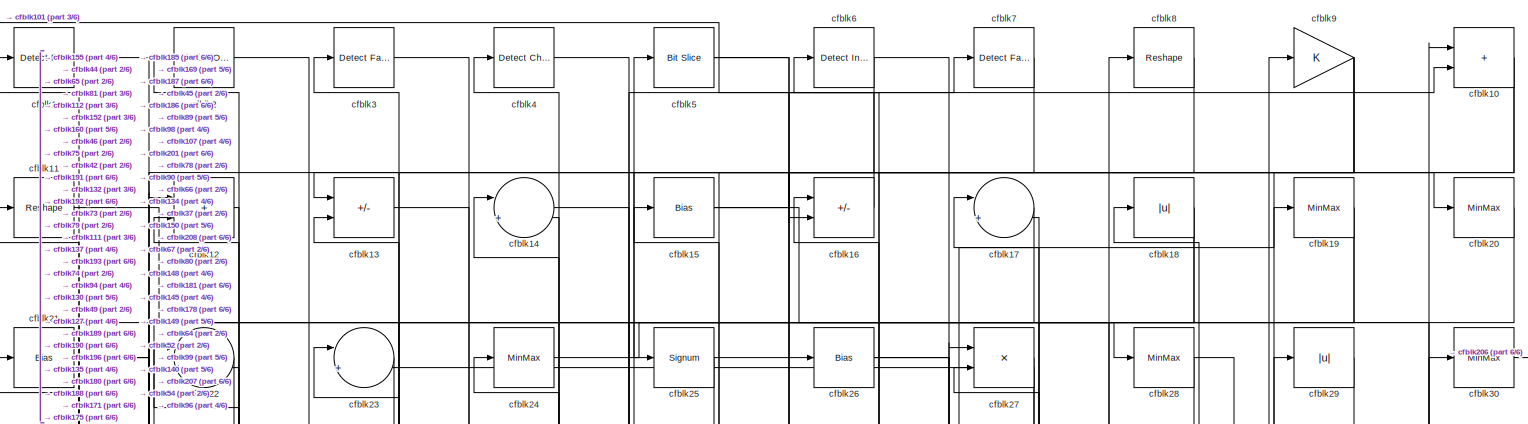
[diagram: root canvas - part 1/6, full width, top band]
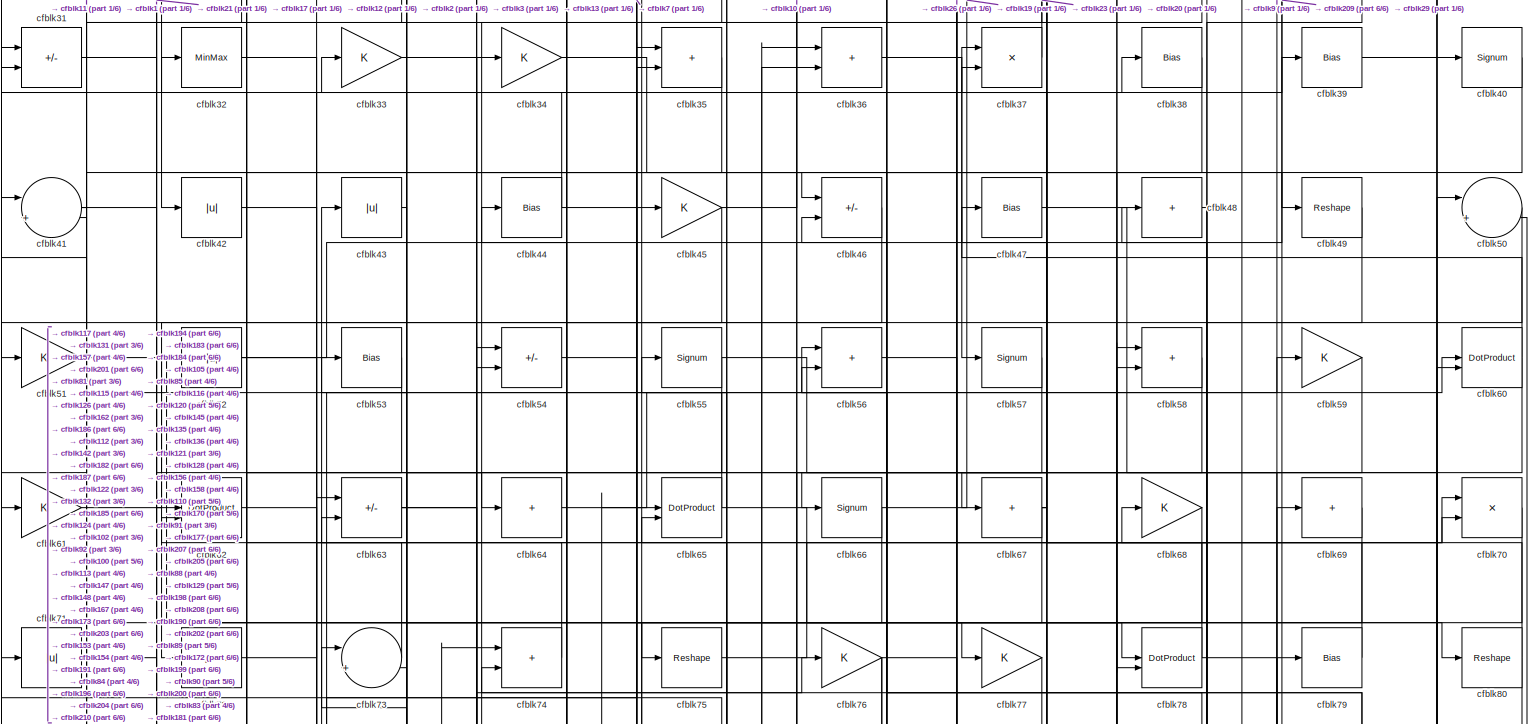
[diagram: root canvas - part 2/6, full width, top band]
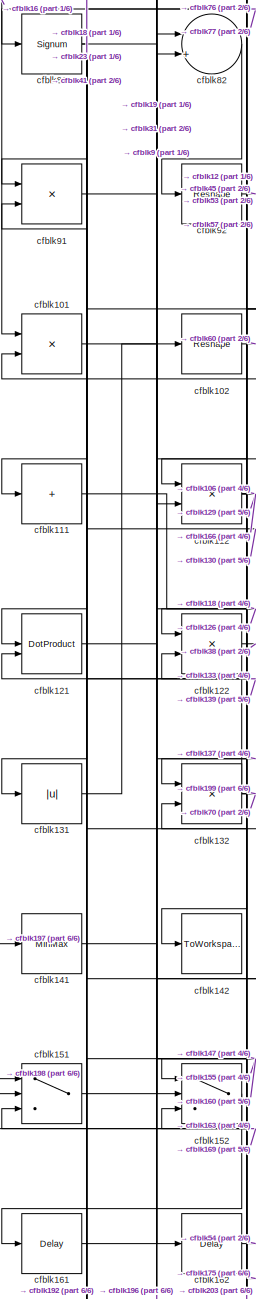
[diagram: root canvas - part 3/6, middle left region]
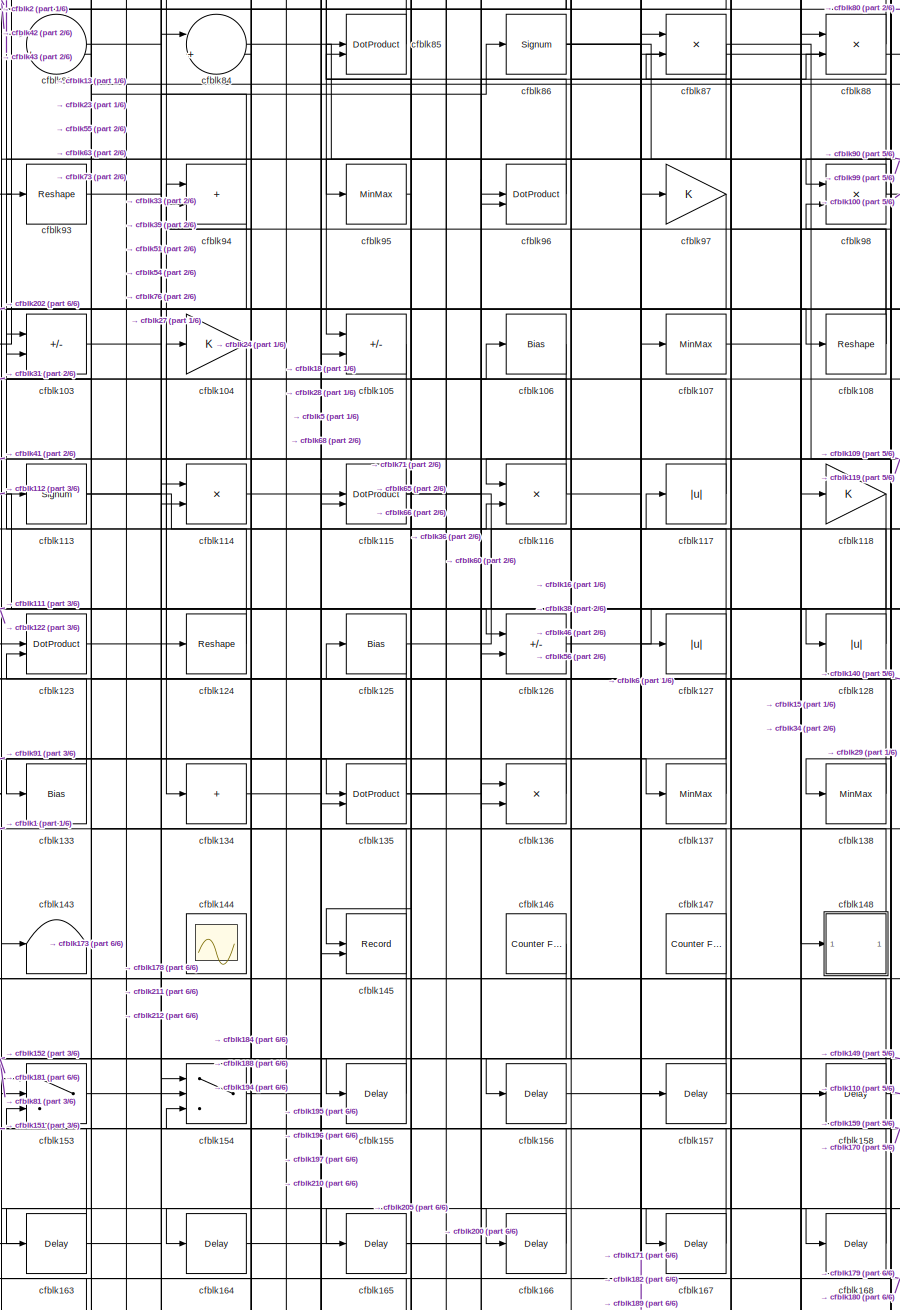
[diagram: root canvas - part 4/6, central region]
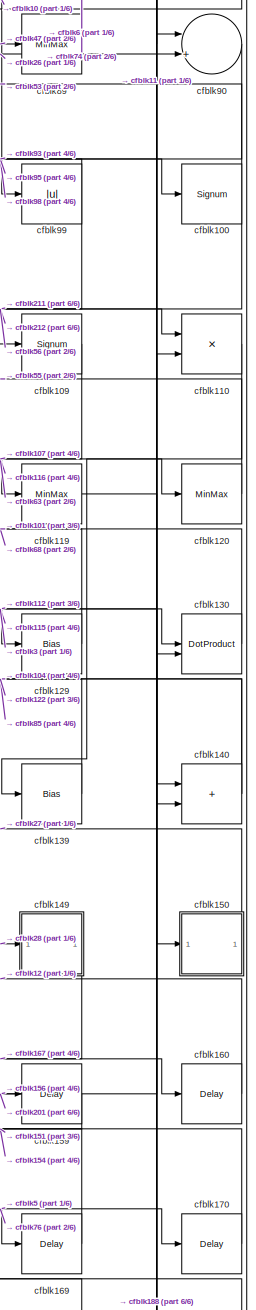
[diagram: root canvas - part 5/6, middle right region]
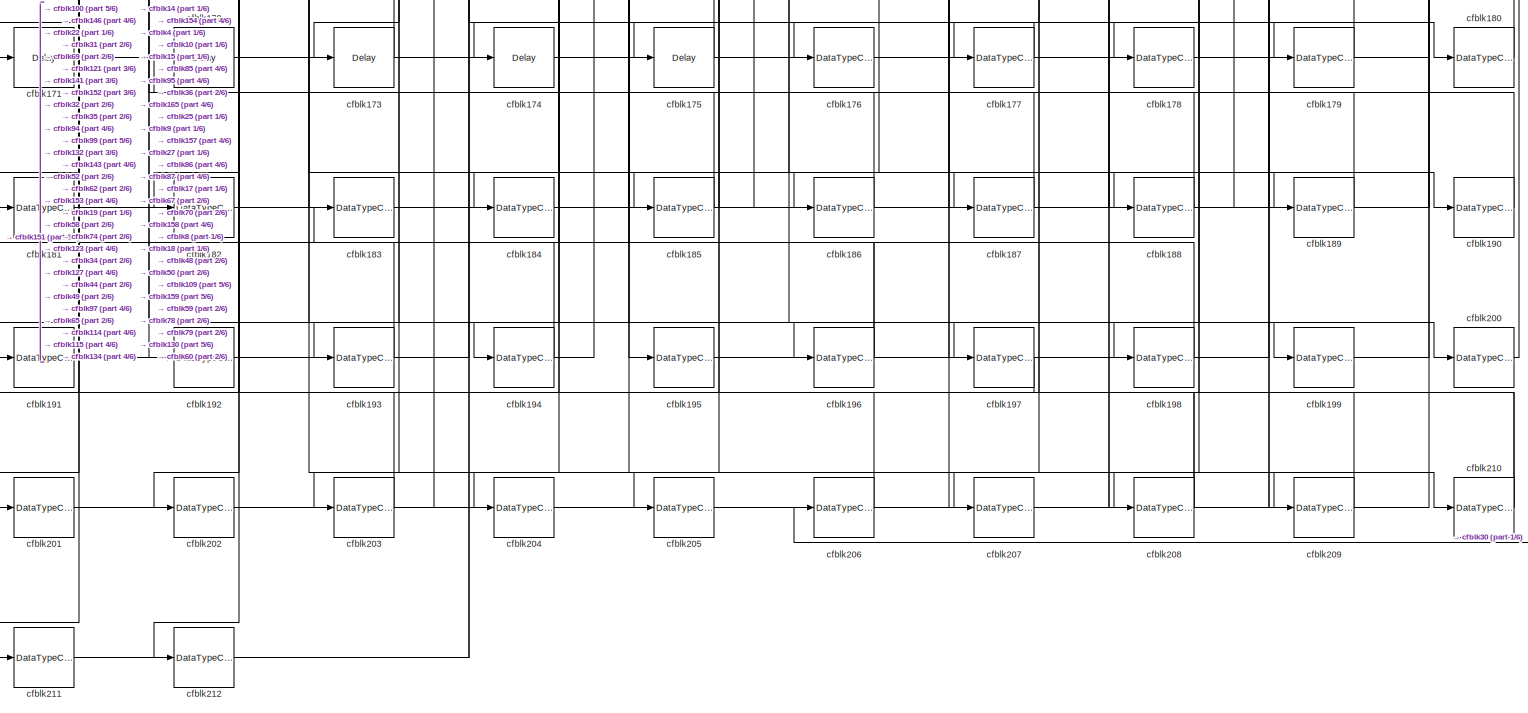
[diagram: root canvas - part 6/6, full width, bottom band]
MODEL slx_bfaeeee8cfff
KIND model
CONFIG AbsTol = auto
CONFIG EnableMultiTasking = off
CONFIG FixedStep = auto
CONFIG MaxStep = auto
CONFIG MinStep = auto
CONFIG RelTol = 1e-3
CONFIG SampleTimeConstraint = Unconstrained
CONFIG SolverName = VariableStepAuto
CONFIG StartTime = 0.0
CONFIG StopTime = 10.0
BLOCK [Reference] cfblk1  REF=hdlsllib/Logic and Bit
Operations/Detect Rise
Positive
  SourceBlock = hdlsllib/Logic and Bit\nOperations/Detect Rise\nPositive
  SourceType = Detect Rise Positive
BLOCK [Sum] cfblk10
  IconShape = rectangular
BLOCK [Signum] cfblk100
BLOCK [Product] cfblk101
  Inputs = */
  RndMeth = Zero
  SaturateOnIntegerOverflow = on
BLOCK [Reshape] cfblk102
BLOCK [Sum] cfblk103
  IconShape = rectangular
  Inputs = +-
BLOCK [Gain] cfblk104
BLOCK [Sum] cfblk105
  IconShape = rectangular
  Inputs = +-
BLOCK [Bias] cfblk106
  Bias = 0.0
  SaturateOnIntegerOverflow = off
BLOCK [MinMax] cfblk107
BLOCK [Reshape] cfblk108
BLOCK [Signum] cfblk109
BLOCK [Reshape] cfblk11
BLOCK [Product] cfblk110
  Inputs = */
  RndMeth = Zero
  SaturateOnIntegerOverflow = on
BLOCK [Sum] cfblk111
  IconShape = rectangular
  Inputs = +
BLOCK [Product] cfblk112
  Inputs = */
  RndMeth = Zero
  SaturateOnIntegerOverflow = on
BLOCK [Signum] cfblk113
BLOCK [Product] cfblk114
  Inputs = */
  RndMeth = Zero
  SaturateOnIntegerOverflow = on
BLOCK [DotProduct] cfblk115
  OutDataTypeStr = Inherit: Inherit via internal rule
BLOCK [Product] cfblk116
  Inputs = */
  RndMeth = Zero
  SaturateOnIntegerOverflow = on
BLOCK [Abs] cfblk117
  SaturateOnIntegerOverflow = off
BLOCK [Gain] cfblk118
BLOCK [MinMax] cfblk119
BLOCK [Sum] cfblk12
  IconShape = rectangular
BLOCK [MinMax] cfblk120
BLOCK [DotProduct] cfblk121
  OutDataTypeStr = Inherit: Inherit via internal rule
BLOCK [Product] cfblk122
  Inputs = */
  RndMeth = Zero
  SaturateOnIntegerOverflow = on
BLOCK [DotProduct] cfblk123
  OutDataTypeStr = Inherit: Inherit via internal rule
BLOCK [Reshape] cfblk124
BLOCK [Bias] cfblk125
  Bias = 0.0
  SaturateOnIntegerOverflow = off
BLOCK [Sum] cfblk126
  IconShape = rectangular
  Inputs = +-
BLOCK [Abs] cfblk127
  SaturateOnIntegerOverflow = off
BLOCK [Abs] cfblk128
  SaturateOnIntegerOverflow = off
BLOCK [Bias] cfblk129
  Bias = 0.0
  SaturateOnIntegerOverflow = off
BLOCK [Sum] cfblk13
  IconShape = rectangular
  Inputs = +-
BLOCK [DotProduct] cfblk130
  OutDataTypeStr = Inherit: Inherit via internal rule
BLOCK [Abs] cfblk131
  SaturateOnIntegerOverflow = off
BLOCK [Product] cfblk132
  Inputs = */
  RndMeth = Zero
  SaturateOnIntegerOverflow = on
BLOCK [Bias] cfblk133
  Bias = 0.0
  SaturateOnIntegerOverflow = off
BLOCK [Sum] cfblk134
  IconShape = rectangular
  Inputs = +
BLOCK [DotProduct] cfblk135
  OutDataTypeStr = Inherit: Inherit via internal rule
BLOCK [Product] cfblk136
  Inputs = */
  RndMeth = Zero
  SaturateOnIntegerOverflow = on
BLOCK [MinMax] cfblk137
BLOCK [MinMax] cfblk138
BLOCK [Bias] cfblk139
  Bias = 0.0
  SaturateOnIntegerOverflow = off
BLOCK [Sum] cfblk14
  Inputs = |++
BLOCK [Sum] cfblk140
  IconShape = rectangular
BLOCK [MinMax] cfblk141
BLOCK [ToWorkspace] cfblk142
  MaxDataPoints = inf
  SampleTime = -1
  SaveFormat = Timeseries
  VariableName = simout
BLOCK [Terminator] cfblk143
BLOCK [Scope] cfblk144
  Floating = on
  NumInputPorts = 1
  ScopeSpecificationString = Simulink.scopes.TimeScopeBlockCfg('CurrentConfiguration', extmgr.ConfigurationSet(extmgr.Configuration('Core','General UI',true,'FigureColor',[0.156862745098039 0.156862745098039 0.156862745098039]),extmgr.Configuration('Core','Source UI',true),extmgr.Configuration('Sources','WiredSimulink',true,'DataLoggingVariableName','ScopeData1','DataLoggingSaveFormat','StructureWithTime','DataLoggingLimitDat...<+2713ch>
BLOCK [Record] cfblk145
  CompatibilityTag = XY
  FileSettingsInternal = {"entries":[{"content":{"excelSettings":{"content":{},"type":"Streamout.ExcelSettings"}},"type":"Streamout.FileSettingStorage","uuid":""}],"packageUris":["http:\/\/schema.mathworks.com\/mf0\/streamout_blocks\/R2020a"],"version":"1.0"}
  Layout = [1 1]
  SignalsInternal = {"entries":[{"content":{"signals":[{"content":{"blockPath":[],"dimensions":[1],"domain":"","lineColor":"#a2142f","plots":[1],"port":1,"signalID":1392,"signalName":"XY Graph:1"},"type":"RecordBlkView.Signal","uuid":""},{"content":{"blockPath":[],"dimensions":[1],"domain":"","lineColor":"#139fff","plots":[1],"port":2,"signalID":1395,"signalName":"XY Graph:2"},"type":"RecordBlkView.Signal","uuid":""}...<+146ch>
  VisualizationBindings = {"xyplotplugin":{"info":[{"series":[{"bindingParametersList":[{"parameter":"X-Axis","signalID":1392,"signalName":"XY Graph:1"},{"parameter":"Y-Axis","signalID":1395,"signalName":"XY Graph:2"}],"seriesID":52034}],"subplotID":1}]}}
  st = -1
BLOCK [Reference] cfblk146  REF=hdlsllib/Sources/Counter
Free-Running
  SourceBlock = hdlsllib/Sources/Counter\nFree-Running
  SourceType = Counter Free-Running
BLOCK [Reference] cfblk147  REF=hdlsllib/Sources/Counter
Free-Running
  SourceBlock = hdlsllib/Sources/Counter\nFree-Running
  SourceType = Counter Free-Running
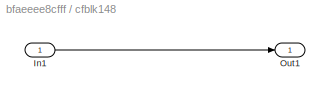
BLOCK [SubSystem] cfblk148
  LibrarySourceBlock = hdlsllib/Ports &\nSubsystems/Subsystem
BLOCK [Inport] cfblk148/In1
BLOCK [Outport] cfblk148/Out1
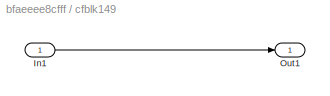
BLOCK [SubSystem] cfblk149
  LibrarySourceBlock = hdlsllib/Ports &\nSubsystems/Subsystem
BLOCK [Inport] cfblk149/In1
BLOCK [Outport] cfblk149/Out1
BLOCK [Bias] cfblk15
  Bias = 0.0
  SaturateOnIntegerOverflow = off
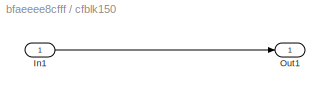
BLOCK [SubSystem] cfblk150
  LibrarySourceBlock = hdlsllib/Ports &\nSubsystems/Subsystem
BLOCK [Inport] cfblk150/In1
BLOCK [Outport] cfblk150/Out1
BLOCK [Switch] cfblk151
  InputSameDT = off
  SaturateOnIntegerOverflow = off
BLOCK [Switch] cfblk152
  InputSameDT = off
  SaturateOnIntegerOverflow = off
BLOCK [Switch] cfblk153
  InputSameDT = off
  SaturateOnIntegerOverflow = off
BLOCK [Switch] cfblk154
  InputSameDT = off
  SaturateOnIntegerOverflow = off
BLOCK [Delay] cfblk155
  InputPortMap = u0
  SampleTime = 1
BLOCK [Delay] cfblk156
  InputPortMap = u0
  SampleTime = 1
BLOCK [Delay] cfblk157
  InputPortMap = u0
  SampleTime = 1
BLOCK [Delay] cfblk158
  InputPortMap = u0
  SampleTime = 1
BLOCK [Delay] cfblk159
  InputPortMap = u0
  SampleTime = 1
BLOCK [Sum] cfblk16
  IconShape = rectangular
  Inputs = +-
BLOCK [Delay] cfblk160
  InputPortMap = u0
  SampleTime = 1
BLOCK [Delay] cfblk161
  InputPortMap = u0
  SampleTime = 1
BLOCK [Delay] cfblk162
  InputPortMap = u0
  SampleTime = 1
BLOCK [Delay] cfblk163
  InputPortMap = u0
  SampleTime = 1
BLOCK [Delay] cfblk164
  InputPortMap = u0
  SampleTime = 1
BLOCK [Delay] cfblk165
  InputPortMap = u0
  SampleTime = 1
BLOCK [Delay] cfblk166
  InputPortMap = u0
  SampleTime = 1
BLOCK [Delay] cfblk167
  InputPortMap = u0
  SampleTime = 1
BLOCK [Delay] cfblk168
  InputPortMap = u0
  SampleTime = 1
BLOCK [Delay] cfblk169
  InputPortMap = u0
  SampleTime = 1
BLOCK [Sum] cfblk17
  Inputs = |++
BLOCK [Delay] cfblk170
  InputPortMap = u0
  SampleTime = 1
BLOCK [Delay] cfblk171
  InputPortMap = u0
  SampleTime = 1
BLOCK [Delay] cfblk172
  InputPortMap = u0
  SampleTime = 1
BLOCK [Delay] cfblk173
  InputPortMap = u0
  SampleTime = 1
BLOCK [Delay] cfblk174
  InputPortMap = u0
  SampleTime = 1
BLOCK [Delay] cfblk175
  InputPortMap = u0
  SampleTime = 1
BLOCK [DataTypeConversion] cfblk176
  OutDataTypeStr = uint8
  RndMeth = Floor
  SaturateOnIntegerOverflow = off
BLOCK [DataTypeConversion] cfblk177
  OutDataTypeStr = uint8
  RndMeth = Floor
  SaturateOnIntegerOverflow = off
BLOCK [DataTypeConversion] cfblk178
  OutDataTypeStr = uint8
  RndMeth = Floor
  SaturateOnIntegerOverflow = off
BLOCK [DataTypeConversion] cfblk179
  OutDataTypeStr = uint8
  RndMeth = Floor
  SaturateOnIntegerOverflow = off
BLOCK [Abs] cfblk18
  SaturateOnIntegerOverflow = off
BLOCK [DataTypeConversion] cfblk180
  OutDataTypeStr = uint8
  RndMeth = Floor
  SaturateOnIntegerOverflow = off
BLOCK [DataTypeConversion] cfblk181
  RndMeth = Floor
  SaturateOnIntegerOverflow = off
BLOCK [DataTypeConversion] cfblk182
  RndMeth = Floor
  SaturateOnIntegerOverflow = off
BLOCK [DataTypeConversion] cfblk183
  OutDataTypeStr = uint8
  RndMeth = Floor
  SaturateOnIntegerOverflow = off
BLOCK [DataTypeConversion] cfblk184
  OutDataTypeStr = uint8
  RndMeth = Floor
  SaturateOnIntegerOverflow = off
BLOCK [DataTypeConversion] cfblk185
  RndMeth = Floor
  SaturateOnIntegerOverflow = off
BLOCK [DataTypeConversion] cfblk186
  OutDataTypeStr = uint8
  RndMeth = Floor
  SaturateOnIntegerOverflow = off
BLOCK [DataTypeConversion] cfblk187
  OutDataTypeStr = uint8
  RndMeth = Floor
  SaturateOnIntegerOverflow = off
BLOCK [DataTypeConversion] cfblk188
  RndMeth = Floor
  SaturateOnIntegerOverflow = off
BLOCK [DataTypeConversion] cfblk189
  OutDataTypeStr = uint8
  RndMeth = Floor
  SaturateOnIntegerOverflow = off
BLOCK [MinMax] cfblk19
BLOCK [DataTypeConversion] cfblk190
  OutDataTypeStr = uint8
  RndMeth = Floor
  SaturateOnIntegerOverflow = off
BLOCK [DataTypeConversion] cfblk191
  OutDataTypeStr = uint8
  RndMeth = Floor
  SaturateOnIntegerOverflow = off
BLOCK [DataTypeConversion] cfblk192
  OutDataTypeStr = uint8
  RndMeth = Floor
  SaturateOnIntegerOverflow = off
BLOCK [DataTypeConversion] cfblk193
  OutDataTypeStr = uint8
  RndMeth = Floor
  SaturateOnIntegerOverflow = off
BLOCK [DataTypeConversion] cfblk194
  RndMeth = Floor
  SaturateOnIntegerOverflow = off
BLOCK [DataTypeConversion] cfblk195
  OutDataTypeStr = uint8
  RndMeth = Floor
  SaturateOnIntegerOverflow = off
BLOCK [DataTypeConversion] cfblk196
  RndMeth = Floor
  SaturateOnIntegerOverflow = off
BLOCK [DataTypeConversion] cfblk197
  OutDataTypeStr = uint8
  RndMeth = Floor
  SaturateOnIntegerOverflow = off
BLOCK [DataTypeConversion] cfblk198
  OutDataTypeStr = uint8
  RndMeth = Floor
  SaturateOnIntegerOverflow = off
BLOCK [DataTypeConversion] cfblk199
  OutDataTypeStr = uint8
  RndMeth = Floor
  SaturateOnIntegerOverflow = off
BLOCK [Reference] cfblk2  REF=simulink/Logic and Bit
Operations/Bitwise
Operator
  LibrarySourceBlock = hdlsllib/Logic and Bit\nOperations/Bitwise\nOperator
  SourceBlock = simulink/Logic and Bit\nOperations/Bitwise\nOperator
  SourceType = Bitwise Operator
BLOCK [MinMax] cfblk20
BLOCK [DataTypeConversion] cfblk200
  OutDataTypeStr = uint8
  RndMeth = Floor
  SaturateOnIntegerOverflow = off
BLOCK [DataTypeConversion] cfblk201
  RndMeth = Floor
  SaturateOnIntegerOverflow = off
BLOCK [DataTypeConversion] cfblk202
  OutDataTypeStr = uint8
  RndMeth = Floor
  SaturateOnIntegerOverflow = off
BLOCK [DataTypeConversion] cfblk203
  RndMeth = Floor
  SaturateOnIntegerOverflow = off
BLOCK [DataTypeConversion] cfblk204
  OutDataTypeStr = uint8
  RndMeth = Floor
  SaturateOnIntegerOverflow = off
BLOCK [DataTypeConversion] cfblk205
  OutDataTypeStr = uint8
  RndMeth = Floor
  SaturateOnIntegerOverflow = off
BLOCK [DataTypeConversion] cfblk206
  OutDataTypeStr = uint8
  RndMeth = Floor
  SaturateOnIntegerOverflow = off
BLOCK [DataTypeConversion] cfblk207
  OutDataTypeStr = uint8
  RndMeth = Floor
  SaturateOnIntegerOverflow = off
BLOCK [DataTypeConversion] cfblk208
  RndMeth = Floor
  SaturateOnIntegerOverflow = off
BLOCK [DataTypeConversion] cfblk209
  OutDataTypeStr = uint8
  RndMeth = Floor
  SaturateOnIntegerOverflow = off
BLOCK [Bias] cfblk21
  Bias = 0.0
  SaturateOnIntegerOverflow = off
BLOCK [DataTypeConversion] cfblk210
  RndMeth = Floor
  SaturateOnIntegerOverflow = off
BLOCK [DataTypeConversion] cfblk211
  OutDataTypeStr = uint8
  RndMeth = Floor
  SaturateOnIntegerOverflow = off
BLOCK [DataTypeConversion] cfblk212
  OutDataTypeStr = uint8
  RndMeth = Floor
  SaturateOnIntegerOverflow = off
BLOCK [Sum] cfblk22
  Inputs = |++
BLOCK [Sum] cfblk23
  Inputs = |++
BLOCK [MinMax] cfblk24
BLOCK [Signum] cfblk25
BLOCK [Bias] cfblk26
  Bias = 0.0
  SaturateOnIntegerOverflow = off
BLOCK [Product] cfblk27
  Inputs = */
  RndMeth = Zero
  SaturateOnIntegerOverflow = on
BLOCK [MinMax] cfblk28
BLOCK [Abs] cfblk29
  SaturateOnIntegerOverflow = off
BLOCK [Reference] cfblk3  REF=hdlsllib/Logic and Bit
Operations/Detect Fall
Negative
  SourceBlock = hdlsllib/Logic and Bit\nOperations/Detect Fall\nNegative
  SourceType = Detect Fall Negative
BLOCK [MinMax] cfblk30
BLOCK [Sum] cfblk31
  IconShape = rectangular
  Inputs = +-
BLOCK [MinMax] cfblk32
BLOCK [Gain] cfblk33
BLOCK [Gain] cfblk34
BLOCK [Sum] cfblk35
  IconShape = rectangular
BLOCK [Sum] cfblk36
  IconShape = rectangular
BLOCK [Product] cfblk37
  Inputs = */
  RndMeth = Zero
  SaturateOnIntegerOverflow = on
BLOCK [Bias] cfblk38
  Bias = 0.0
  SaturateOnIntegerOverflow = off
BLOCK [Bias] cfblk39
  Bias = 0.0
  SaturateOnIntegerOverflow = off
BLOCK [Reference] cfblk4  REF=simulink/Logic and Bit
Operations/Detect
Change
  LibrarySourceBlock = hdlsllib/Logic and Bit\nOperations/Detect\nChange
  SourceBlock = simulink/Logic and Bit\nOperations/Detect\nChange
  SourceType = Detect Change
BLOCK [Signum] cfblk40
BLOCK [Sum] cfblk41
  Inputs = |++
BLOCK [Abs] cfblk42
  SaturateOnIntegerOverflow = off
BLOCK [Abs] cfblk43
  SaturateOnIntegerOverflow = off
BLOCK [Bias] cfblk44
  Bias = 0.0
  SaturateOnIntegerOverflow = off
BLOCK [Gain] cfblk45
BLOCK [Sum] cfblk46
  IconShape = rectangular
  Inputs = +-
BLOCK [Bias] cfblk47
  Bias = 0.0
  SaturateOnIntegerOverflow = off
BLOCK [Sum] cfblk48
  IconShape = rectangular
  Inputs = +
BLOCK [Reshape] cfblk49
BLOCK [Reference] cfblk5  REF=hdlsllib/Logic and Bit
Operations/Bit Slice
  SourceBlock = hdlsllib/Logic and Bit\nOperations/Bit Slice
  SourceType = Bit Slice
BLOCK [Sum] cfblk50
  Inputs = |++
BLOCK [Gain] cfblk51
BLOCK [Abs] cfblk52
  SaturateOnIntegerOverflow = off
BLOCK [Bias] cfblk53
  Bias = 0.0
  SaturateOnIntegerOverflow = off
BLOCK [Sum] cfblk54
  IconShape = rectangular
  Inputs = +-
BLOCK [Signum] cfblk55
BLOCK [Sum] cfblk56
  IconShape = rectangular
BLOCK [Signum] cfblk57
BLOCK [Sum] cfblk58
  IconShape = rectangular
BLOCK [Gain] cfblk59
BLOCK [Reference] cfblk6  REF=simulink/Logic and Bit
Operations/Detect
Increase
  LibrarySourceBlock = hdlsllib/Logic and Bit\nOperations/Detect\nIncrease
  SourceBlock = simulink/Logic and Bit\nOperations/Detect\nIncrease
  SourceType = Detect Increase
BLOCK [DotProduct] cfblk60
  OutDataTypeStr = Inherit: Inherit via internal rule
BLOCK [Gain] cfblk61
BLOCK [DotProduct] cfblk62
  OutDataTypeStr = Inherit: Inherit via internal rule
BLOCK [Sum] cfblk63
  IconShape = rectangular
  Inputs = +-
BLOCK [Sum] cfblk64
  IconShape = rectangular
  Inputs = +
BLOCK [DotProduct] cfblk65
  OutDataTypeStr = Inherit: Inherit via internal rule
BLOCK [Signum] cfblk66
BLOCK [Sum] cfblk67
  IconShape = rectangular
  Inputs = +
BLOCK [Gain] cfblk68
BLOCK [Sum] cfblk69
  IconShape = rectangular
  Inputs = +
BLOCK [Reference] cfblk7  REF=hdlsllib/Logic and Bit
Operations/Detect Fall
Nonpositive
  SourceBlock = hdlsllib/Logic and Bit\nOperations/Detect Fall\nNonpositive
  SourceType = Detect Fall Nonpositive
BLOCK [Product] cfblk70
  Inputs = */
  RndMeth = Zero
  SaturateOnIntegerOverflow = on
BLOCK [Abs] cfblk71
  SaturateOnIntegerOverflow = off
BLOCK [Signum] cfblk72
BLOCK [Sum] cfblk73
  Inputs = |++
BLOCK [Sum] cfblk74
  IconShape = rectangular
BLOCK [Reshape] cfblk75
BLOCK [Gain] cfblk76
BLOCK [Gain] cfblk77
BLOCK [DotProduct] cfblk78
  OutDataTypeStr = Inherit: Inherit via internal rule
BLOCK [Bias] cfblk79
  Bias = 0.0
  SaturateOnIntegerOverflow = off
BLOCK [Reshape] cfblk8
BLOCK [Reshape] cfblk80
BLOCK [Signum] cfblk81
BLOCK [Sum] cfblk82
  Inputs = |++
BLOCK [Sum] cfblk83
  Inputs = |++
BLOCK [Sum] cfblk84
  Inputs = |++
BLOCK [DotProduct] cfblk85
  OutDataTypeStr = Inherit: Inherit via internal rule
BLOCK [Signum] cfblk86
BLOCK [Product] cfblk87
  Inputs = */
  RndMeth = Zero
  SaturateOnIntegerOverflow = on
BLOCK [Product] cfblk88
  Inputs = */
  RndMeth = Zero
  SaturateOnIntegerOverflow = on
BLOCK [MinMax] cfblk89
BLOCK [Gain] cfblk9
BLOCK [Sum] cfblk90
  Inputs = |++
BLOCK [Product] cfblk91
  Inputs = */
  RndMeth = Zero
  SaturateOnIntegerOverflow = on
BLOCK [Reshape] cfblk92
BLOCK [Reshape] cfblk93
BLOCK [Sum] cfblk94
  IconShape = rectangular
BLOCK [MinMax] cfblk95
BLOCK [DotProduct] cfblk96
  OutDataTypeStr = Inherit: Inherit via internal rule
BLOCK [Gain] cfblk97
BLOCK [Product] cfblk98
  Inputs = */
  RndMeth = Zero
  SaturateOnIntegerOverflow = on
BLOCK [Abs] cfblk99
  SaturateOnIntegerOverflow = off
NET cfblk100:1 -> cfblk211:1, cfblk53:1
LINE cfblk101:1 -> cfblk160:1
LINE cfblk102:1 -> cfblk60:1
LINE cfblk103:1 -> cfblk108:1
LINE cfblk104:1 -> cfblk133:1
LINE cfblk105:1 -> cfblk164:1
LINE cfblk106:1 -> cfblk165:1
LINE cfblk107:1 -> cfblk119:1
NET cfblk108:1 -> cfblk87:2, cfblk94:1
LINE cfblk109:1 -> cfblk116:1
NET cfblk10:1 -> cfblk175:1, cfblk99:1
LINE cfblk110:1 -> cfblk139:1
LINE cfblk111:1 -> cfblk126:2
NET cfblk112:1 -> cfblk106:1, cfblk129:1, cfblk166:1
NET cfblk113:1 -> cfblk116:2, cfblk54:2
LINE cfblk114:1 -> cfblk210:1
NET cfblk115:1 -> cfblk140:2, cfblk88:2
NET cfblk116:1 -> cfblk127:1, cfblk65:2
LINE cfblk117:1 -> cfblk31:1
LINE cfblk118:1 -> cfblk122:1
LINE cfblk119:1 -> cfblk150:1
LINE cfblk11:1 -> cfblk140:1
LINE cfblk120:1 -> cfblk55:1
LINE cfblk121:1 -> cfblk192:1
LINE cfblk122:1 -> cfblk38:1
LINE cfblk123:1 -> cfblk178:1
LINE cfblk124:1 -> cfblk43:1
NET cfblk125:1 -> cfblk117:1, cfblk163:1
LINE cfblk126:1 -> cfblk128:1
NET cfblk127:1 -> cfblk184:1, cfblk24:1
LINE cfblk128:1 -> cfblk56:1
LINE cfblk129:1 -> cfblk68:1
LINE cfblk12:1 -> cfblk132:1
LINE cfblk130:1 -> cfblk101:2
LINE cfblk131:1 -> cfblk102:1
NET cfblk132:1 -> cfblk121:2, cfblk199:1, cfblk70:2
LINE cfblk133:1 -> cfblk91:2
LINE cfblk134:1 -> cfblk195:1
NET cfblk135:1 -> cfblk103:2, cfblk36:2, cfblk96:1
LINE cfblk136:1 -> cfblk103:1
LINE cfblk137:1 -> cfblk23:1
LINE cfblk138:1 -> cfblk125:1
LINE cfblk139:1 -> cfblk122:2
LINE cfblk13:1 -> cfblk49:1
NET cfblk140:1 -> cfblk104:1, cfblk85:1
LINE cfblk141:1 -> cfblk196:1
LINE cfblk146:1 -> cfblk181:1
NET cfblk147:1 -> cfblk152:1, cfblk63:2
LINE cfblk148/In1:1 -> cfblk148/Out1:1
LINE cfblk148:1 -> cfblk33:1
LINE cfblk149/In1:1 -> cfblk149/Out1:1
LINE cfblk149:1 -> cfblk167:1
LINE cfblk14:1 -> cfblk188:1
LINE cfblk150/In1:1 -> cfblk150/Out1:1
LINE cfblk150:1 -> cfblk27:2
LINE cfblk151:1 -> cfblk82:1
LINE cfblk152:1 -> cfblk161:1
LINE cfblk153:1 -> cfblk39:1
LINE cfblk154:1 -> cfblk197:1
LINE cfblk155:1 -> cfblk1:1
LINE cfblk156:1 -> cfblk110:2
LINE cfblk157:1 -> cfblk41:1
LINE cfblk158:1 -> cfblk46:2
LINE cfblk159:1 -> cfblk154:3
NET cfblk15:1 -> cfblk148:1, cfblk20:1
LINE cfblk160:1 -> cfblk12:1
LINE cfblk161:1 -> cfblk82:2
LINE cfblk162:1 -> cfblk54:1
LINE cfblk163:1 -> cfblk151:2
LINE cfblk164:1 -> cfblk136:1
LINE cfblk165:1 -> cfblk200:1
LINE cfblk166:1 -> cfblk154:2
LINE cfblk167:1 -> cfblk73:1
LINE cfblk168:1 -> cfblk153:3
LINE cfblk169:1 -> cfblk151:3
LINE cfblk16:1 -> cfblk101:1
LINE cfblk170:1 -> cfblk98:2
LINE cfblk171:1 -> cfblk87:1
LINE cfblk172:1 -> cfblk60:2
LINE cfblk173:1 -> cfblk153:1
LINE cfblk174:1 -> cfblk176:1
LINE cfblk175:1 -> cfblk132:2
LINE cfblk176:1 -> cfblk179:1
LINE cfblk177:1 -> cfblk174:1
LINE cfblk178:1 -> cfblk18:1
LINE cfblk179:1 -> cfblk123:1
LINE cfblk17:1 -> cfblk42:1
LINE cfblk180:1 -> cfblk123:2
NET cfblk181:1 -> cfblk10:1, cfblk143:1, cfblk79:1, cfblk8:1
NET cfblk182:1 -> cfblk157:1, cfblk158:1
LINE cfblk183:1 -> cfblk35:1
LINE cfblk184:1 -> cfblk35:2
NET cfblk185:1 -> cfblk15:1, cfblk32:1, cfblk36:1
LINE cfblk186:1 -> cfblk62:1
LINE cfblk187:1 -> cfblk62:2
NET cfblk188:1 -> cfblk109:1, cfblk130:2, cfblk94:2
LINE cfblk189:1 -> cfblk14:1
NET cfblk18:1 -> cfblk135:2, cfblk81:1
LINE cfblk190:1 -> cfblk14:2
LINE cfblk191:1 -> cfblk34:1
LINE cfblk192:1 -> cfblk22:1
LINE cfblk193:1 -> cfblk22:2
NET cfblk194:1 -> cfblk183:1, cfblk65:1
LINE cfblk195:1 -> cfblk97:1
NET cfblk196:1 -> cfblk115:1, cfblk4:1, cfblk59:1
LINE cfblk197:1 -> cfblk141:1
LINE cfblk198:1 -> cfblk151:1
LINE cfblk199:1 -> cfblk50:1
NET cfblk19:1 -> cfblk112:2, cfblk193:1
LINE cfblk1:1 -> cfblk46:1
LINE cfblk200:1 -> cfblk50:2
NET cfblk201:1 -> cfblk159:1, cfblk27:1
LINE cfblk202:1 -> cfblk69:1
NET cfblk203:1 -> cfblk152:3, cfblk74:1
LINE cfblk204:1 -> cfblk58:1
LINE cfblk205:1 -> cfblk58:2
LINE cfblk206:1 -> cfblk172:1
LINE cfblk207:1 -> cfblk30:1
NET cfblk208:1 -> cfblk17:2, cfblk31:2
LINE cfblk209:1 -> cfblk48:1
LINE cfblk20:1 -> cfblk67:1
NET cfblk210:1 -> cfblk44:1, cfblk85:2
LINE cfblk211:1 -> cfblk114:1
LINE cfblk212:1 -> cfblk114:2
NET cfblk21:1 -> cfblk64:1, cfblk75:1
LINE cfblk22:1 -> cfblk191:1
LINE cfblk23:1 -> cfblk111:1
LINE cfblk24:1 -> cfblk28:1
NET cfblk25:1 -> cfblk171:1, cfblk187:1
NET cfblk26:1 -> cfblk78:2, cfblk90:2
LINE cfblk27:1 -> cfblk134:1
NET cfblk28:1 -> cfblk145:2, cfblk149:1
LINE cfblk29:1 -> cfblk98:1
LINE cfblk2:1 -> cfblk135:1
LINE cfblk30:1 -> cfblk206:1
LINE cfblk31:1 -> cfblk162:1
LINE cfblk32:1 -> cfblk78:1
LINE cfblk33:1 -> cfblk84:1
LINE cfblk34:1 -> cfblk88:1
LINE cfblk35:1 -> cfblk182:1
LINE cfblk36:1 -> cfblk57:1
LINE cfblk37:1 -> cfblk23:2
LINE cfblk38:1 -> cfblk156:1
LINE cfblk39:1 -> cfblk40:1
LINE cfblk3:1 -> cfblk130:1
LINE cfblk40:1 -> cfblk61:1
NET cfblk41:1 -> cfblk115:2, cfblk131:1
LINE cfblk42:1 -> cfblk105:2
LINE cfblk43:1 -> cfblk113:1
NET cfblk44:1 -> cfblk21:1, cfblk80:1
NET cfblk45:1 -> cfblk10:2, cfblk72:1
LINE cfblk46:1 -> cfblk51:1
LINE cfblk47:1 -> cfblk89:1
LINE cfblk48:1 -> cfblk208:1
LINE cfblk49:1 -> cfblk204:1
LINE cfblk4:1 -> cfblk180:1
LINE cfblk50:1 -> cfblk198:1
LINE cfblk51:1 -> cfblk124:1
NET cfblk52:1 -> cfblk209:1, cfblk29:1
LINE cfblk53:1 -> cfblk112:1
LINE cfblk54:1 -> cfblk7:1
NET cfblk55:1 -> cfblk83:2, cfblk90:1
LINE cfblk56:1 -> cfblk110:1
LINE cfblk57:1 -> cfblk142:1
LINE cfblk58:1 -> cfblk203:1
LINE cfblk59:1 -> cfblk66:1
NET cfblk5:1 -> cfblk169:1, cfblk26:1
NET cfblk60:1 -> cfblk136:2, cfblk37:1
LINE cfblk61:1 -> cfblk52:1
LINE cfblk62:1 -> cfblk185:1
NET cfblk63:1 -> cfblk120:1, cfblk154:1
LINE cfblk64:1 -> cfblk9:1
NET cfblk65:1 -> cfblk11:1, cfblk77:1
NET cfblk66:1 -> cfblk145:1, cfblk19:1
NET cfblk67:1 -> cfblk173:1, cfblk207:1, cfblk37:2
LINE cfblk68:1 -> cfblk105:1
LINE cfblk69:1 -> cfblk201:1
NET cfblk6:1 -> cfblk107:1, cfblk13:1
LINE cfblk70:1 -> cfblk177:1
LINE cfblk71:1 -> cfblk126:1
LINE cfblk72:1 -> cfblk63:1
LINE cfblk73:1 -> cfblk12:2
LINE cfblk74:1 -> cfblk3:1
LINE cfblk75:1 -> cfblk70:1
NET cfblk76:1 -> cfblk121:1, cfblk170:1, cfblk84:2
LINE cfblk77:1 -> cfblk91:1
NET cfblk78:1 -> cfblk190:1, cfblk47:1
LINE cfblk79:1 -> cfblk2:1
LINE cfblk7:1 -> cfblk73:2
NET cfblk80:1 -> cfblk17:1, cfblk83:1
NET cfblk81:1 -> cfblk155:1, cfblk41:2
LINE cfblk82:1 -> cfblk92:1
LINE cfblk83:1 -> cfblk76:1
LINE cfblk84:1 -> cfblk96:2
LINE cfblk85:1 -> cfblk71:1
NET cfblk86:1 -> cfblk118:1, cfblk168:1, cfblk189:1
NET cfblk87:1 -> cfblk138:1, cfblk153:2
LINE cfblk88:1 -> cfblk56:2
NET cfblk89:1 -> cfblk6:1, cfblk74:2
LINE cfblk8:1 -> cfblk16:2
LINE cfblk90:1 -> cfblk93:1
LINE cfblk91:1 -> cfblk137:1
LINE cfblk92:1 -> cfblk45:1
LINE cfblk93:1 -> cfblk86:1
NET cfblk94:1 -> cfblk13:2, cfblk202:1
LINE cfblk95:1 -> cfblk205:1
LINE cfblk96:1 -> cfblk5:1
LINE cfblk97:1 -> cfblk194:1
NET cfblk98:1 -> cfblk100:1, cfblk16:1
NET cfblk99:1 -> cfblk212:1, cfblk95:1
NET cfblk9:1 -> cfblk152:2, cfblk186:1, cfblk25:1
note: NET lines group one-source signal fan-out (src -> all destinations, sorted); 1:1 wires keep LINE
